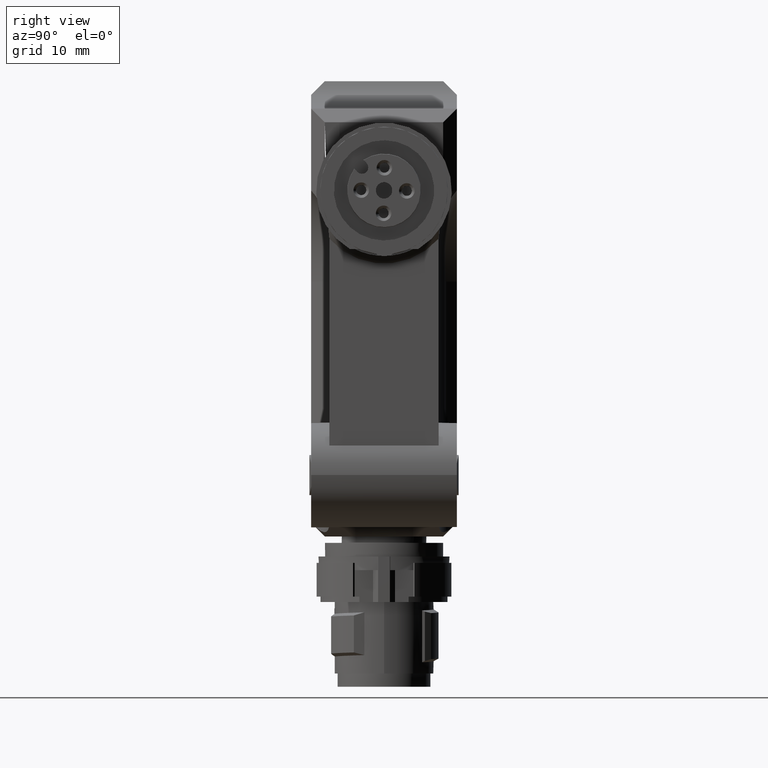
[diagram: clean part render]
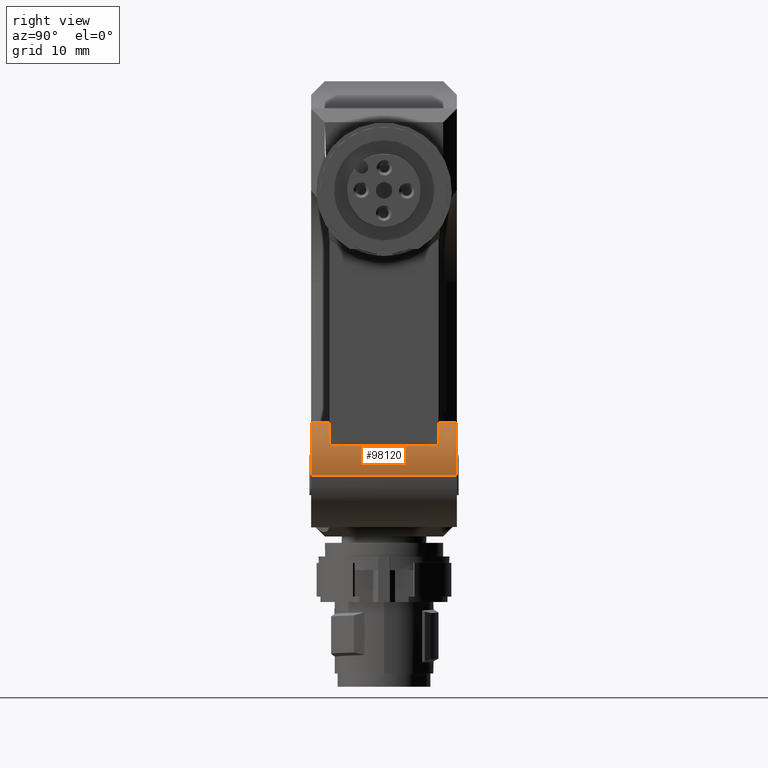
[diagram: same view with one face highlighted and labeled with its STEP entity id]
A machine part, right view. The second image highlights one B-rep face of the part: STEP entity #98120.
In plain terms, the highlighted cylindrical surface (partial cylindrical patch) has radius 5.75 mm, axis along (0, -1, 0).
Its self-contained STEP definition (entity closure, byte-faithful):
#10130=CARTESIAN_POINT('',(8.,13.25,6.75000000000001));
#10140=DIRECTION('',(1.,0.,0.));
#10150=DIRECTION('',(0.,1.,0.));
#10160=AXIS2_PLACEMENT_3D('',#10130,#10140,#10150);
#10170=CIRCLE('',#10160,5.75000000000003);
#10200=CARTESIAN_POINT('',(8.,19.,6.75000000000001));
#10210=VERTEX_POINT('',#10200);
#10240=CARTESIAN_POINT('',(8.,19.,6.75000000000001));
#10250=DIRECTION('',(1.,0.,0.));
#10260=VECTOR('',#10250,1.);
#10270=LINE('',#10240,#10260);
#10280=CARTESIAN_POINT('',(-7.99999999999999,19.,6.75000000000001));
#10290=VERTEX_POINT('',#10280);
#10300=EDGE_CURVE('',#10290,#10210,#10270,.T.);
#10320=CARTESIAN_POINT('',(-7.99999999999999,13.25,6.75000000000001));
#10330=DIRECTION('',(1.,0.,0.));
#10340=DIRECTION('',(0.,1.,0.));
#10350=AXIS2_PLACEMENT_3D('',#10320,#10330,#10340);
#10360=CIRCLE('',#10350,5.75000000000003);
#10370=CARTESIAN_POINT('',(-7.99999999999999,7.49999999999997,
6.75000000000001));
#10380=VERTEX_POINT('',#10370);
#10410=CARTESIAN_POINT('',(8.,7.49999999999997,6.75000000000001));
#10420=DIRECTION('',(1.,0.,0.));
#10430=VECTOR('',#10420,1.);
#10440=LINE('',#10410,#10430);
#10450=CARTESIAN_POINT('',(-6.001,7.49999999999997,6.75000000000001));
#10460=VERTEX_POINT('',#10450);
#10470=EDGE_CURVE('',#10380,#10460,#10440,.T.);
#10490=CARTESIAN_POINT('',(-6.001,13.25,6.75000000000001));
#10500=DIRECTION('',(1.,0.,0.));
#10510=DIRECTION('',(0.,1.,0.));
#10520=AXIS2_PLACEMENT_3D('',#10490,#10500,#10510);
#10530=CIRCLE('',#10520,5.75000000000003);
#10660=CARTESIAN_POINT('',(6.001,13.25,6.75000000000001));
#10670=DIRECTION('',(1.,0.,0.));
#10680=DIRECTION('',(0.,1.,0.));
#10690=AXIS2_PLACEMENT_3D('',#10660,#10670,#10680);
#10700=CIRCLE('',#10690,5.75000000000003);
#10710=CARTESIAN_POINT('',(6.001,7.49999999999997,6.75000000000001));
#10720=VERTEX_POINT('',#10710);
#10750=CARTESIAN_POINT('',(8.,7.49999999999997,6.75000000000001));
#10760=VERTEX_POINT('',#10750);
#10770=EDGE_CURVE('',#10720,#10760,#10440,.T.);
#11530=CARTESIAN_POINT('',(-6.001,18.,9.99037034920399));
#11540=VERTEX_POINT('',#11530);
#11570=CARTESIAN_POINT('',(8.,18.,9.99037034920399));
#11580=DIRECTION('',(1.,0.,0.));
#11590=VECTOR('',#11580,1.);
#11600=LINE('',#11570,#11590);
#11610=CARTESIAN_POINT('',(6.001,18.,9.99037034920399));
#11620=VERTEX_POINT('',#11610);
#11630=EDGE_CURVE('',#11540,#11620,#11600,.T.);
#19510=EDGE_CURVE('',#11620,#10720,#10700,.T.);
#24860=EDGE_CURVE('',#11540,#10460,#10530,.T.);
#29400=EDGE_CURVE('',#10210,#10760,#10170,.T.);
#29710=EDGE_CURVE('',#10290,#10380,#10360,.T.);
#97970=CARTESIAN_POINT('',(8.,13.25,6.75000000000001));
#97980=DIRECTION('',(1.,0.,0.));
#97990=DIRECTION('',(0.,1.,0.));
#98000=AXIS2_PLACEMENT_3D('',#97970,#97980,#97990);
#98010=CYLINDRICAL_SURFACE('',#98000,5.75000000000003);
#98020=ORIENTED_EDGE('',*,*,#29710,.T.);
#98030=ORIENTED_EDGE('',*,*,#10300,.F.);
#98040=ORIENTED_EDGE('',*,*,#29400,.F.);
#98050=ORIENTED_EDGE('',*,*,#10770,.T.);
#98060=ORIENTED_EDGE('',*,*,#19510,.T.);
#98070=ORIENTED_EDGE('',*,*,#11630,.T.);
#98080=ORIENTED_EDGE('',*,*,#24860,.F.);
#98090=ORIENTED_EDGE('',*,*,#10470,.T.);
#98100=EDGE_LOOP('',(#98090,#98080,#98070,#98060,#98050,#98040,#98030,
#98020));
#98110=FACE_OUTER_BOUND('',#98100,.T.);
#98120=ADVANCED_FACE('',(#98110),#98010,.T.);